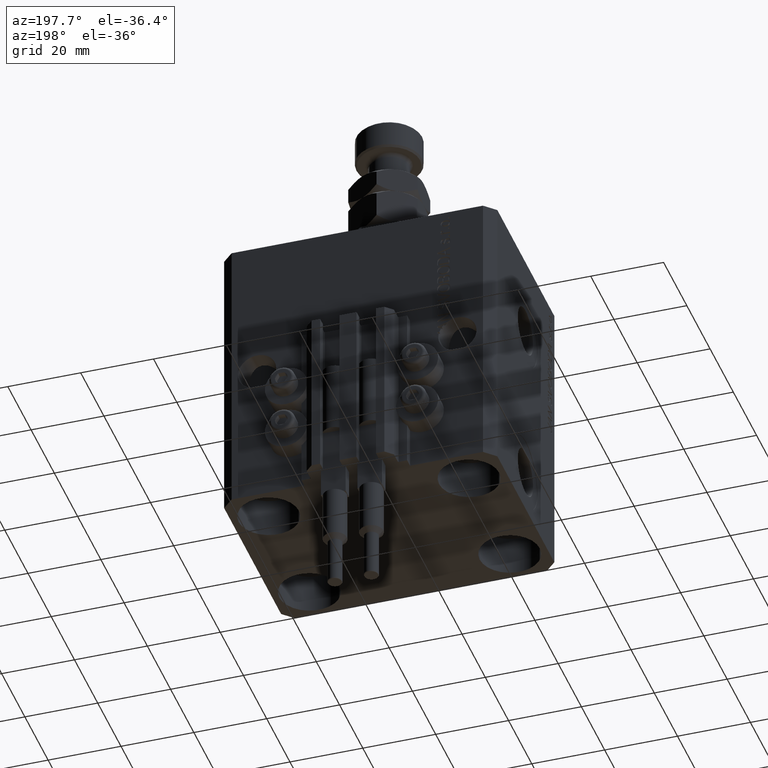
[diagram: clean part render]
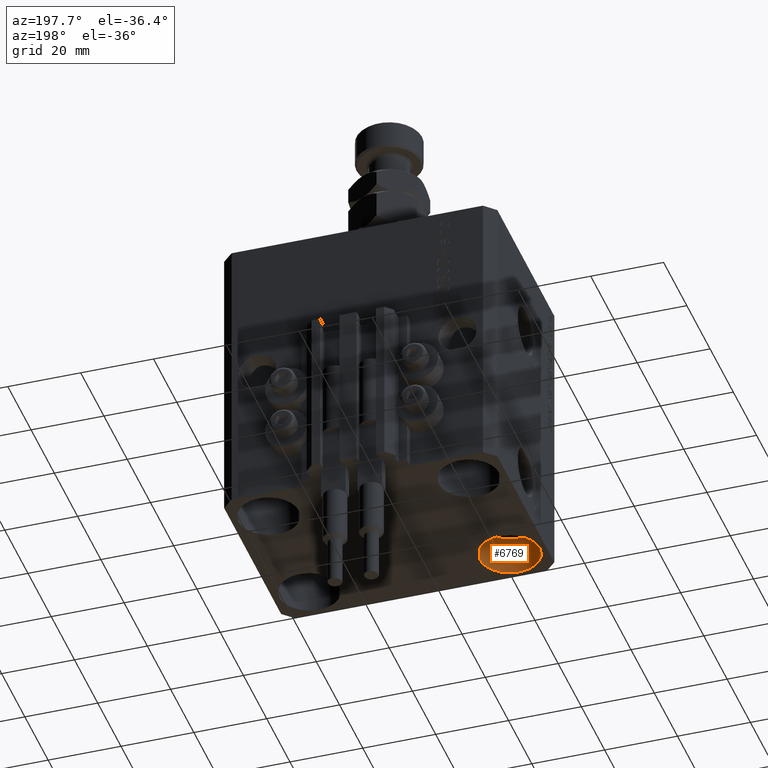
[diagram: same view with one face highlighted and labeled with its STEP entity id]
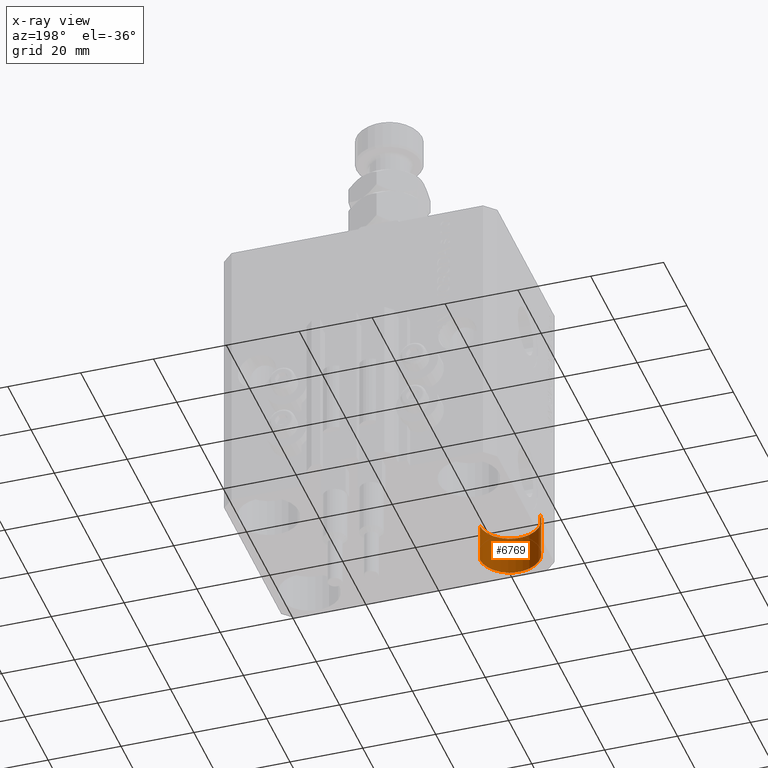
[diagram: x-ray of the same camera — body ghosted, the highlighted face saturated]
A machine part, auxiliary view. The second image highlights one B-rep face of the part: STEP entity #6769.
The next image is the same camera in x-ray: the body ghosted, the highlighted face saturated — about 0% of this face is hidden behind the body in this view.
In plain terms, the highlighted cylindrical surface (edge-blend (fillet) strip) has radius 8.25 mm, axis along (-0, -0, -1).
Its self-contained STEP definition (entity closure, byte-faithful):
#1858 = ORIENTED_EDGE ( 'NONE', *, *, #14244, .T. ) ;
#5111 = DIRECTION ( 'NONE',  ( 1.000000000000000000, 0.000000000000000000, 0.000000000000000000 ) ) ;
#6769 = ADVANCED_FACE ( 'NONE', ( #38925 ), #12496, .F. ) ;
#10965 = AXIS2_PLACEMENT_3D ( 'NONE', #31200, #46881, #24198 ) ;
#12496 = CYLINDRICAL_SURFACE ( 'NONE', #10965, 8.250000000000000000 ) ;
#13230 = VERTEX_POINT ( 'NONE', #24555 ) ;
#13734 = ORIENTED_EDGE ( 'NONE', *, *, #31395, .F. ) ;
#14244 = EDGE_CURVE ( 'NONE', #25107, #13230, #47549, .T. ) ;
#16577 = CARTESIAN_POINT ( 'NONE',  ( -27.50000000000000355, -17.50000000000000000, -69.00000000000000000 ) ) ;
#17108 = CIRCLE ( 'NONE', #25082, 8.250000000000000000 ) ;
#17217 = CARTESIAN_POINT ( 'NONE',  ( -27.50000000000000355, -17.50000000000000000, -80.00000000000000000 ) ) ;
#19558 = VERTEX_POINT ( 'NONE', #41539 ) ;
#19701 = CARTESIAN_POINT ( 'NONE',  ( -35.75000000000000711, -17.50000000000000000, -80.00000000000000000 ) ) ;
#20512 = LINE ( 'NONE', #28008, #24411 ) ;
#22269 = VERTEX_POINT ( 'NONE', #19701 ) ;
#23372 = CARTESIAN_POINT ( 'NONE',  ( -19.25000000000000355, -17.50000000000000000, -69.00000000000000000 ) ) ;
#23832 = EDGE_CURVE ( 'NONE', #22269, #13230, #17108, .T. ) ;
#24198 = DIRECTION ( 'NONE',  ( -1.000000000000000000, 0.000000000000000000, 0.000000000000000000 ) ) ;
#24411 = VECTOR ( 'NONE', #40466, 1000.000000000000000 ) ;
#24555 = CARTESIAN_POINT ( 'NONE',  ( -19.25000000000000355, -17.50000000000000000, -80.00000000000000000 ) ) ;
#25082 = AXIS2_PLACEMENT_3D ( 'NONE', #17217, #28193, #31949 ) ;
#25107 = VERTEX_POINT ( 'NONE', #23372 ) ;
#26529 = EDGE_CURVE ( 'NONE', #19558, #25107, #38721, .T. ) ;
#27005 = VECTOR ( 'NONE', #29097, 1000.000000000000000 ) ;
#28008 = CARTESIAN_POINT ( 'NONE',  ( -35.75000000000000711, -17.50000000000000000, -69.00000000000000000 ) ) ;
#28193 = DIRECTION ( 'NONE',  ( -0.000000000000000000, -0.000000000000000000, 1.000000000000000000 ) ) ;
#29097 = DIRECTION ( 'NONE',  ( -0.000000000000000000, -0.000000000000000000, -1.000000000000000000 ) ) ;
#31200 = CARTESIAN_POINT ( 'NONE',  ( -27.50000000000000355, -17.50000000000000000, -69.00000000000000000 ) ) ;
#31395 = EDGE_CURVE ( 'NONE', #19558, #22269, #20512, .T. ) ;
#31949 = DIRECTION ( 'NONE',  ( 1.000000000000000000, 0.000000000000000000, 0.000000000000000000 ) ) ;
#33822 = AXIS2_PLACEMENT_3D ( 'NONE', #16577, #39274, #5111 ) ;
#37961 = EDGE_LOOP ( 'NONE', ( #48229, #1858, #43504, #13734 ) ) ;
#38721 = CIRCLE ( 'NONE', #33822, 8.250000000000000000 ) ;
#38925 = FACE_OUTER_BOUND ( 'NONE', #37961, .T. ) ;
#39274 = DIRECTION ( 'NONE',  ( -0.000000000000000000, -0.000000000000000000, 1.000000000000000000 ) ) ;
#40466 = DIRECTION ( 'NONE',  ( -0.000000000000000000, -0.000000000000000000, -1.000000000000000000 ) ) ;
#41539 = CARTESIAN_POINT ( 'NONE',  ( -35.75000000000000711, -17.50000000000000000, -69.00000000000000000 ) ) ;
#43504 = ORIENTED_EDGE ( 'NONE', *, *, #23832, .F. ) ;
#44051 = CARTESIAN_POINT ( 'NONE',  ( -19.25000000000000355, -17.50000000000000000, -69.00000000000000000 ) ) ;
#46881 = DIRECTION ( 'NONE',  ( -0.000000000000000000, -0.000000000000000000, -1.000000000000000000 ) ) ;
#47549 = LINE ( 'NONE', #44051, #27005 ) ;
#48229 = ORIENTED_EDGE ( 'NONE', *, *, #26529, .T. ) ;